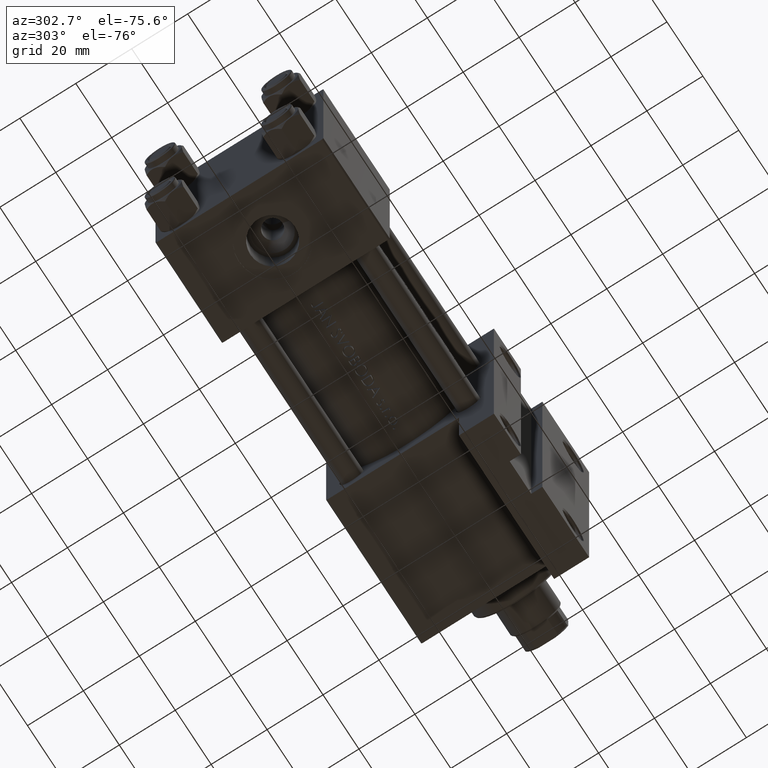
[diagram: clean part render]
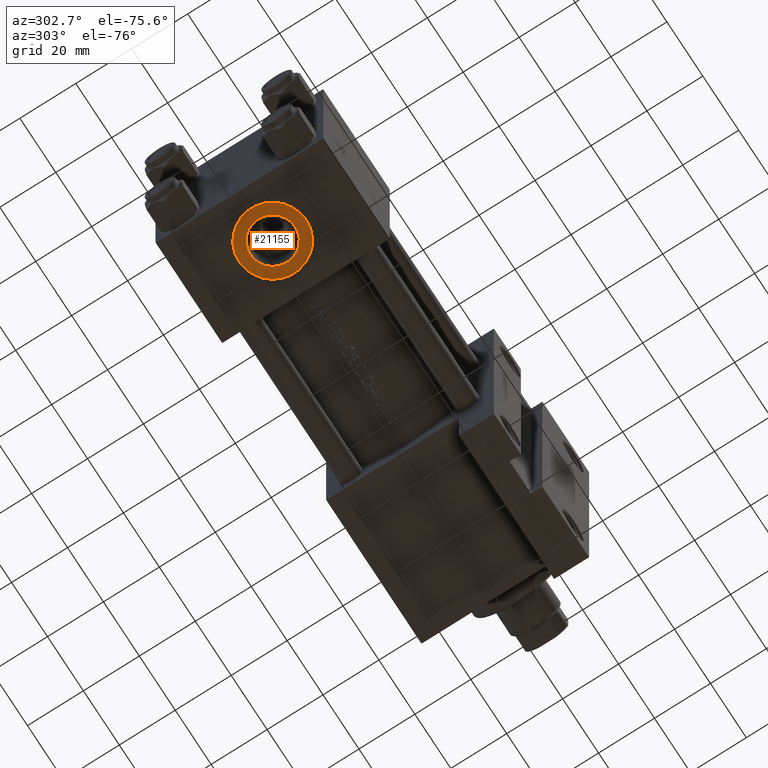
[diagram: same view with one face highlighted and labeled with its STEP entity id]
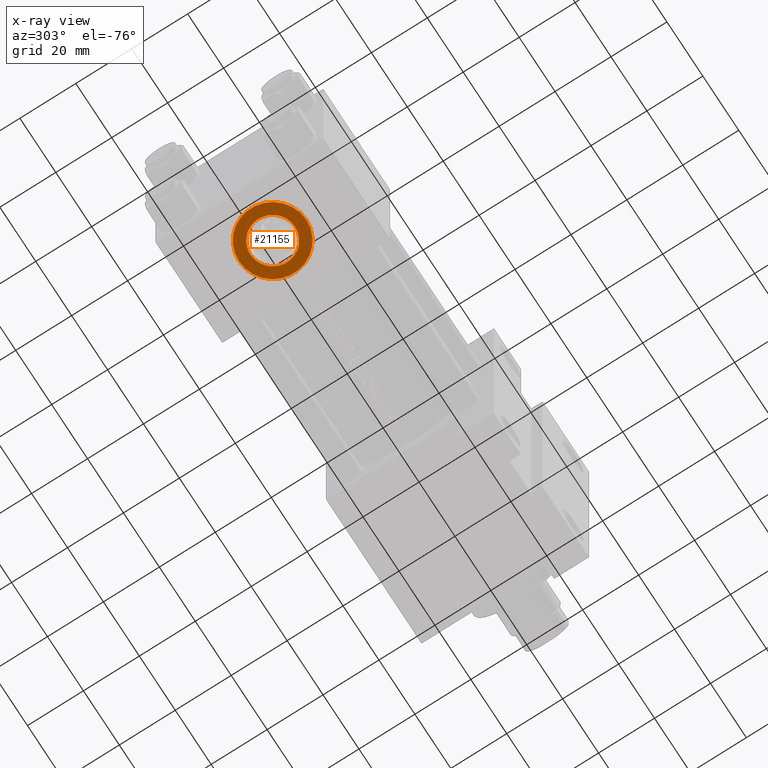
[diagram: x-ray of the same camera — body ghosted, the highlighted face saturated]
A machine part, auxiliary view. The second image highlights one B-rep face of the part: STEP entity #21155.
The next image is the same camera in x-ray: the body ghosted, the highlighted face saturated — about 0% of this face is hidden behind the body in this view.
In plain terms, the highlighted planar face has unit normal (0, 0, -1).
Its self-contained STEP definition (entity closure, byte-faithful):
#2261 = VERTEX_POINT ( 'NONE', #28415 ) ;
#3585 = CIRCLE ( 'NONE', #32257, 12.00000000000000178 ) ;
#5696 = DIRECTION ( 'NONE',  ( 0.000000000000000000, 1.000000000000000000, 0.000000000000000000 ) ) ;
#7948 = FACE_OUTER_BOUND ( 'NONE', #32224, .T. ) ;
#9481 = EDGE_CURVE ( 'NONE', #2261, #46774, #21379, .T. ) ;
#10931 = DIRECTION ( 'NONE',  ( 0.000000000000000000, 0.000000000000000000, 1.000000000000000000 ) ) ;
#13397 = ORIENTED_EDGE ( 'NONE', *, *, #19449, .T. ) ;
#13493 = AXIS2_PLACEMENT_3D ( 'NONE', #35146, #34392, #15633 ) ;
#14528 = CARTESIAN_POINT ( 'NONE',  ( 18.50000000000000000, 29.79999999999999361, 0.000000000000000000 ) ) ;
#15633 = DIRECTION ( 'NONE',  ( 0.000000000000000000, -0.000000000000000000, 1.000000000000000000 ) ) ;
#15832 = EDGE_LOOP ( 'NONE', ( #44506, #18801 ) ) ;
#16329 = CIRCLE ( 'NONE', #26195, 8.000000000000001776 ) ;
#18084 = AXIS2_PLACEMENT_3D ( 'NONE', #48823, #5696, #45219 ) ;
#18801 = ORIENTED_EDGE ( 'NONE', *, *, #9481, .F. ) ;
#18985 = PLANE ( 'NONE',  #13493 ) ;
#19136 = EDGE_CURVE ( 'NONE', #40319, #42911, #3585, .T. ) ;
#19449 = EDGE_CURVE ( 'NONE', #42911, #40319, #38864, .T. ) ;
#21155 = ADVANCED_FACE ( 'NONE', ( #23592, #7948 ), #18985, .T. ) ;
#21227 = CARTESIAN_POINT ( 'NONE',  ( 18.50000000000000000, 29.79999999999999361, 0.000000000000000000 ) ) ;
#21379 = CIRCLE ( 'NONE', #18084, 8.000000000000001776 ) ;
#21775 = DIRECTION ( 'NONE',  ( 0.000000000000000000, 1.000000000000000000, 0.000000000000000000 ) ) ;
#23592 = FACE_BOUND ( 'NONE', #15832, .T. ) ;
#25050 = EDGE_CURVE ( 'NONE', #46774, #2261, #16329, .T. ) ;
#25094 = DIRECTION ( 'NONE',  ( 0.000000000000000000, 1.000000000000000000, 0.000000000000000000 ) ) ;
#26195 = AXIS2_PLACEMENT_3D ( 'NONE', #21227, #25094, #47965 ) ;
#26491 = ORIENTED_EDGE ( 'NONE', *, *, #19136, .T. ) ;
#28415 = CARTESIAN_POINT ( 'NONE',  ( 18.50000000000000000, 29.79999999999999361, -8.000000000000001776 ) ) ;
#32224 = EDGE_LOOP ( 'NONE', ( #13397, #26491 ) ) ;
#32257 = AXIS2_PLACEMENT_3D ( 'NONE', #41309, #21775, #40797 ) ;
#33208 = CARTESIAN_POINT ( 'NONE',  ( 18.50000000000000000, 29.79999999999999361, -12.00000000000000178 ) ) ;
#34392 = DIRECTION ( 'NONE',  ( 0.000000000000000000, 1.000000000000000000, 0.000000000000000000 ) ) ;
#35146 = CARTESIAN_POINT ( 'NONE',  ( 18.50000000000000000, 29.79999999999999361, 0.000000000000000000 ) ) ;
#37216 = AXIS2_PLACEMENT_3D ( 'NONE', #14528, #42009, #10931 ) ;
#38864 = CIRCLE ( 'NONE', #37216, 12.00000000000000178 ) ;
#39976 = CARTESIAN_POINT ( 'NONE',  ( 18.50000000000000000, 29.79999999999999361, 12.00000000000000178 ) ) ;
#40319 = VERTEX_POINT ( 'NONE', #33208 ) ;
#40797 = DIRECTION ( 'NONE',  ( 0.000000000000000000, 0.000000000000000000, 1.000000000000000000 ) ) ;
#41309 = CARTESIAN_POINT ( 'NONE',  ( 18.50000000000000000, 29.79999999999999361, 0.000000000000000000 ) ) ;
#42009 = DIRECTION ( 'NONE',  ( 0.000000000000000000, 1.000000000000000000, 0.000000000000000000 ) ) ;
#42911 = VERTEX_POINT ( 'NONE', #39976 ) ;
#43315 = CARTESIAN_POINT ( 'NONE',  ( 18.50000000000000000, 29.79999999999999361, 8.000000000000001776 ) ) ;
#44506 = ORIENTED_EDGE ( 'NONE', *, *, #25050, .F. ) ;
#45219 = DIRECTION ( 'NONE',  ( 0.000000000000000000, 0.000000000000000000, 1.000000000000000000 ) ) ;
#46774 = VERTEX_POINT ( 'NONE', #43315 ) ;
#47965 = DIRECTION ( 'NONE',  ( 0.000000000000000000, 0.000000000000000000, 1.000000000000000000 ) ) ;
#48823 = CARTESIAN_POINT ( 'NONE',  ( 18.50000000000000000, 29.79999999999999361, 0.000000000000000000 ) ) ;